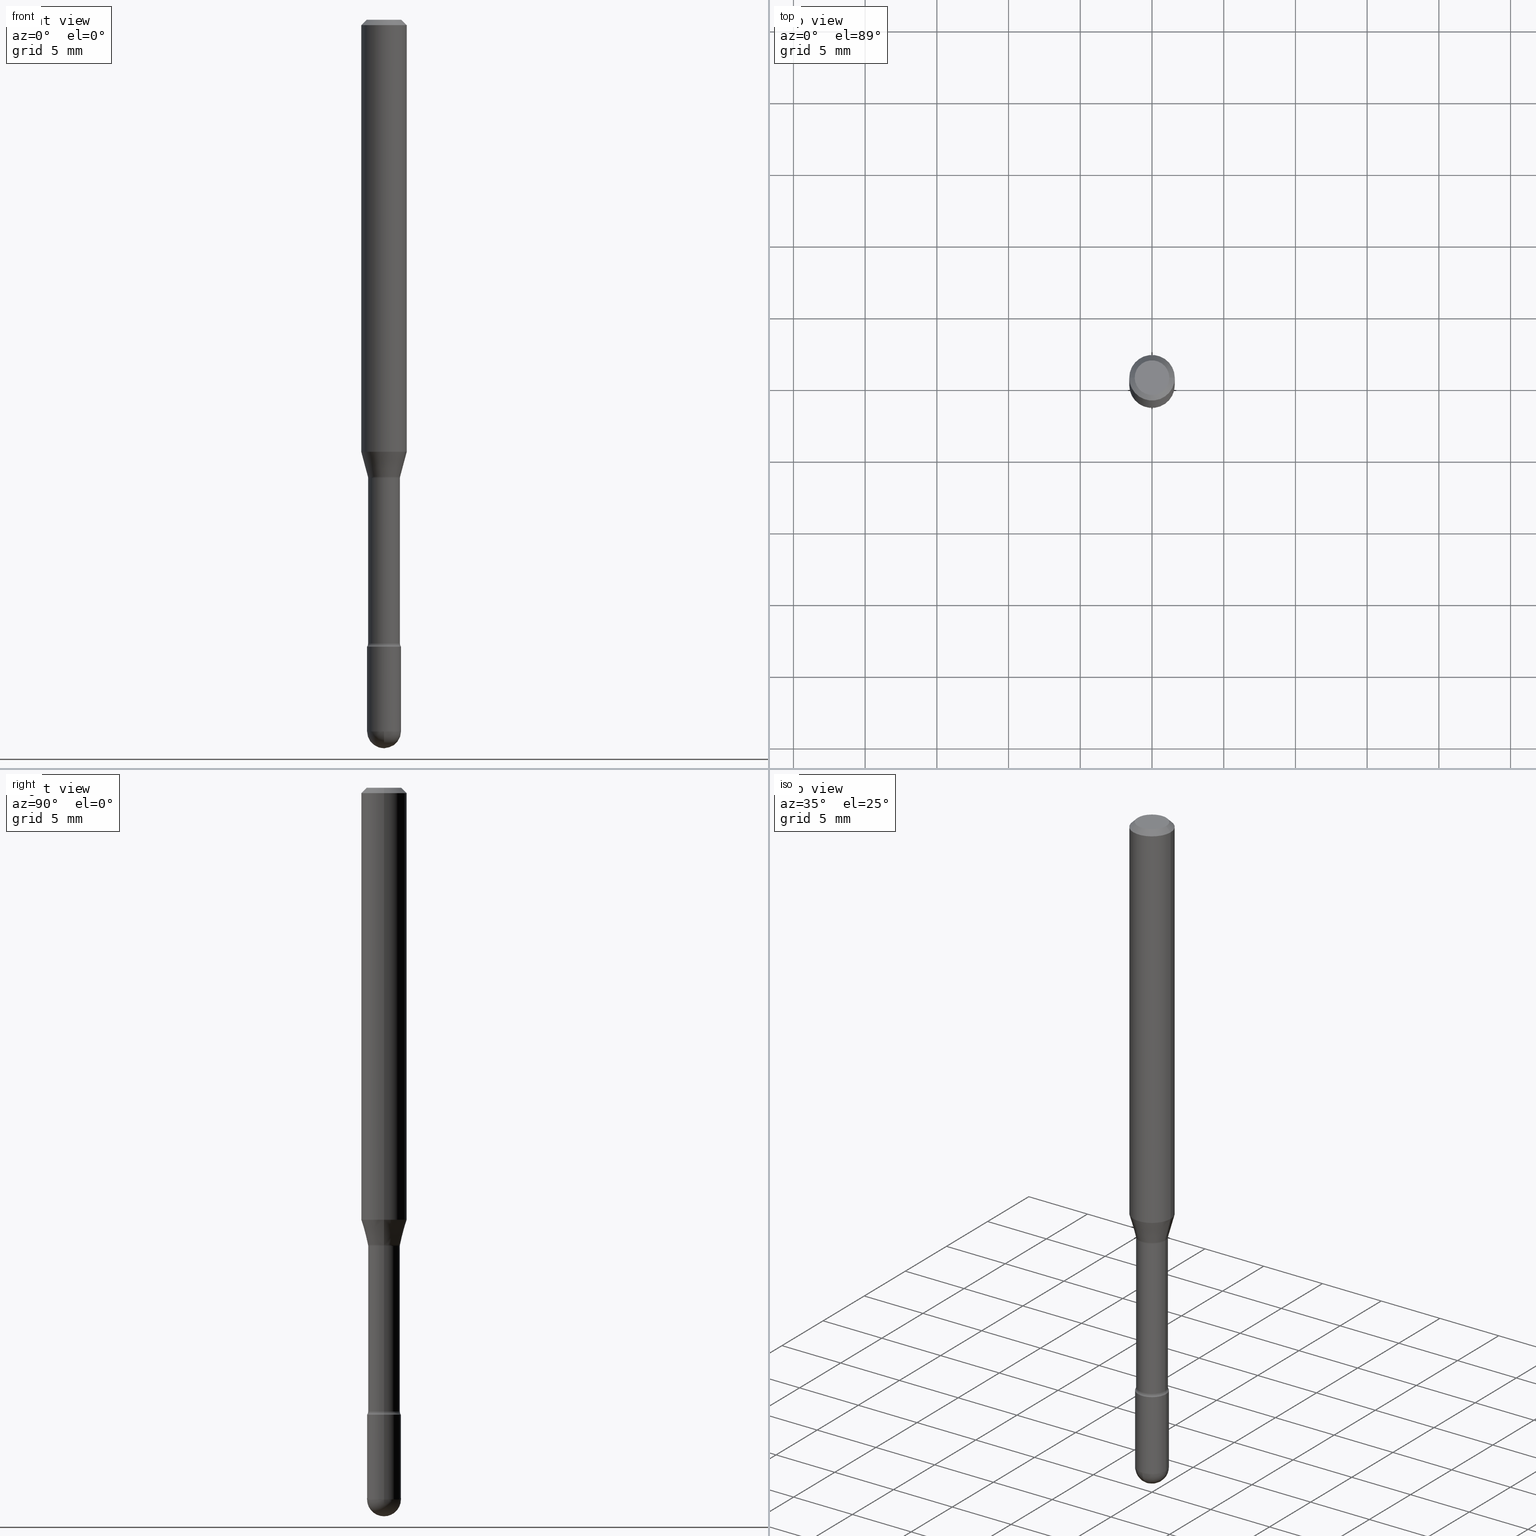
[diagram: canonical four-view strip — front | top / right | iso, engineering-drawing reading convention]
A machine part, canonical four-view strip (front | top / right | iso — engineering-drawing reading convention). The complete STEP part file that produces these views, byte-faithful:
ISO-10303-21;
HEADER;
FILE_DESCRIPTION (( 'STEP AP203' ),
    '1' );
FILE_NAME ('09827.STEP',
    '2024-04-10T01:56:25',
    ( '' ),
    ( '' ),
    'SwSTEP 2.0',
    'SolidWorks 2023',
    '' );
FILE_SCHEMA (( 'CONFIG_CONTROL_DESIGN' ));
ENDSEC;

DATA;
#1 = DESIGN_CONTEXT ( 'detailed design', #406, 'design' ) ;
#2 = EDGE_LOOP ( 'NONE', ( #127, #449, #97, #460 ) ) ;
#3 = CARTESIAN_POINT ( 'NONE',  ( 4.777223312882664517E-29, -6.820608795430085022E-15, -1.953500000000000014 ) ) ;
#4 = ORIENTED_EDGE ( 'NONE', *, *, #207, .T. ) ;
#5 = CIRCLE ( 'NONE', #421, 0.04370000000000000967 ) ;
#6 = EDGE_LOOP ( 'NONE', ( #410, #67 ) ) ;
#7 = CIRCLE ( 'NONE', #205, 0.04649999999999999967 ) ;
#8 = ADVANCED_FACE ( 'NONE', ( #29 ), #203, .F. ) ;
#9 = FACE_OUTER_BOUND ( 'NONE', #173, .T. ) ;
#10 = EDGE_LOOP ( 'NONE', ( #154, #348, #104, #102 ) ) ;
#11 = CARTESIAN_POINT ( 'NONE',  ( 3.316907271900976096E-16, 0.04749999999999999362, 3.181781981480094004E-17 ) ) ;
#12 = DIRECTION ( 'NONE',  ( -2.445468806185136597E-29, 3.491481338843145583E-15, 1.000000000000000000 ) ) ;
#13 = CARTESIAN_POINT ( 'NONE',  ( -0.04421111260566398804, -4.064501718155114829E-15, -1.254092501787273051 ) ) ;
#14 = ORIENTED_EDGE ( 'NONE', *, *, #327, .T. ) ;
#15 = DIRECTION ( 'NONE',  ( 1.000000000000000000, -6.982962677686267499E-15, 4.884662768193073002E-29 ) ) ;
#16 = AXIS2_PLACEMENT_3D ( 'NONE', #450, #491, #142 ) ;
#17 = VECTOR ( 'NONE', #213, 39.37007874015748143 ) ;
#18 = CARTESIAN_POINT ( 'NONE',  ( 4.208651815444620572E-29, -6.008839384149054309E-15, -1.721000000000000085 ) ) ;
#19 = ORIENTED_EDGE ( 'NONE', *, *, #323, .T. ) ;
#20 = CC_DESIGN_DATE_AND_TIME_ASSIGNMENT ( #246, #560, ( #382 ) ) ;
#21 = DIRECTION ( 'NONE',  ( -2.445468806185136597E-29, 3.491481338843145583E-15, 1.000000000000000000 ) ) ;
#22 = DIRECTION ( 'NONE',  ( -2.445468806185136597E-29, 3.491481338843145583E-15, 1.000000000000000000 ) ) ;
#23 = ORIENTED_EDGE ( 'NONE', *, *, #354, .F. ) ;
#24 = CARTESIAN_POINT ( 'NONE',  ( -0.06250000000000000000, -3.696240099632393448E-15, -1.185837444817705144 ) ) ;
#25 = AXIS2_PLACEMENT_3D ( 'NONE', #125, #209, #302 ) ;
#26 = VERTEX_POINT ( 'NONE', #148 ) ;
#27 = CC_DESIGN_PERSON_AND_ORGANIZATION_ASSIGNMENT ( #79, #249, ( #40 ) ) ;
#28 = CARTESIAN_POINT ( 'NONE',  ( 4.777223312882664517E-29, -6.820608795430085022E-15, -1.953500000000000014 ) ) ;
#29 = FACE_OUTER_BOUND ( 'NONE', #283, .T. ) ;
#30 = CARTESIAN_POINT ( 'NONE',  ( -0.04649999999999999967, -6.084321717661122786E-15, -1.721000000000000085 ) ) ;
#31 = DIRECTION ( 'NONE',  ( 6.982962677686265922E-15, 1.000000000000000000, -5.874941921858636379E-15 ) ) ;
#32 = ADVANCED_FACE ( 'NONE', ( #191 ), #286, .T. ) ;
#33 = CALENDAR_DATE ( 2024, 9, 4 ) ;
#34 = EDGE_CURVE ( 'NONE', #548, #375, #106, .T. ) ;
#35 = AXIS2_PLACEMENT_3D ( 'NONE', #3, #427, #206 ) ;
#36 = APPROVAL_PERSON_ORGANIZATION ( #211, #98, #387 ) ;
#37 = CARTESIAN_POINT ( 'NONE',  ( 0.06250000000000000000, -4.888073874380391431E-16, -0.01500000000000008271 ) ) ;
#38 = APPROVAL_DATE_TIME ( #379, #343 ) ;
#39 = VERTEX_POINT ( 'NONE', #70 ) ;
#40 = PRODUCT ( '09827', '09827', '', ( #291 ) ) ;
#41 = LINE ( 'NONE', #115, #17 ) ;
#42 = SECURITY_CLASSIFICATION_LEVEL ( 'unclassified' ) ;
#43 = AXIS2_PLACEMENT_3D ( 'NONE', #316, #140, #311 ) ;
#44 = AXIS2_PLACEMENT_3D ( 'NONE', #11, #315, #358 ) ;
#45 = CARTESIAN_POINT ( 'NONE',  ( 4.777223312882664517E-29, -6.820608795430085022E-15, -1.953500000000000014 ) ) ;
#46 = ORIENTED_EDGE ( 'NONE', *, *, #134, .T. ) ;
#47 = PERSON ( 'UNSPECIFIED', 'UNSPECIFIED', 'UNSPECIFIED', ('UNSPECIFIED'), ('UNSPECIFIED'), ('UNSPECIFIED') ) ;
#48 = CARTESIAN_POINT ( 'NONE',  ( 2.023552857353652888E-45, -2.889097183224559242E-31, -8.274703207154537794E-17 ) ) ;
#49 = EDGE_LOOP ( 'NONE', ( #210, #561, #308, #23 ) ) ;
#50 = FACE_OUTER_BOUND ( 'NONE', #131, .T. ) ;
#51 = ORIENTED_EDGE ( 'NONE', *, *, #555, .T. ) ;
#52 = AXIS2_PLACEMENT_3D ( 'NONE', #187, #518, #483 ) ;
#53 = MANIFOLD_SOLID_BREP ( 'Body-Move/Copy2[1]', #552 ) ;
#54 = DIRECTION ( 'NONE',  ( -1.000000000000000000, 6.982962677686266711E-15, 0.000000000000000000 ) ) ;
#55 = PLANE ( 'NONE',  #372 ) ;
#56 = CARTESIAN_POINT ( 'NONE',  ( 0.05870000000000006463, -6.388269241505986850E-15, -1.712273030308291144 ) ) ;
#57 = CARTESIAN_POINT ( 'NONE',  ( 3.668203209277725232E-31, -5.237222008264747365E-17, -0.01500000000000008271 ) ) ;
#58 = ORIENTED_EDGE ( 'NONE', *, *, #524, .T. ) ;
#59 = CARTESIAN_POINT ( 'NONE',  ( -0.06250000000000000000, 4.440892098500642925E-16, 4.780733988912429571E-16 ) ) ;
#60 = VECTOR ( 'NONE', #260, 39.37007874015748143 ) ;
#61 = DIRECTION ( 'NONE',  ( -2.445468806185136597E-29, 3.491481338843145583E-15, 1.000000000000000000 ) ) ;
#62 = CARTESIAN_POINT ( 'NONE',  ( 3.076338101710126374E-29, -4.392195495165068238E-15, -1.257974787463810973 ) ) ;
#63 = CARTESIAN_POINT ( 'NONE',  ( -0.04370000000000000967, -4.874775238218270843E-15, -1.257974787463810973 ) ) ;
#64 = CARTESIAN_POINT ( 'NONE',  ( 4.892925873992615034E-29, -6.980115373878273276E-15, -2.000000000000000000 ) ) ;
#65 = ORIENTED_EDGE ( 'NONE', *, *, #536, .T. ) ;
#66 = CIRCLE ( 'NONE', #43, 0.01500000000000011394 ) ;
#67 = ORIENTED_EDGE ( 'NONE', *, *, #172, .T. ) ;
#68 = VECTOR ( 'NONE', #355, 39.37007874015747433 ) ;
#69 = DIRECTION ( 'NONE',  ( -2.445468806185136597E-29, 3.491481338843145583E-15, 1.000000000000000000 ) ) ;
#70 = CARTESIAN_POINT ( 'NONE',  ( -0.04650000000000006212, -5.678437012020607034E-15, -1.721000000000000085 ) ) ;
#71 = EDGE_CURVE ( 'NONE', #239, #548, #519, .T. ) ;
#72 = DATE_AND_TIME ( #33, #112 ) ;
#73 = CARTESIAN_POINT ( 'NONE',  ( 3.066844093191453631E-29, -4.378640567173378440E-15, -1.254092501787273051 ) ) ;
#74 = AXIS2_PLACEMENT_3D ( 'NONE', #162, #366, #241 ) ;
#75 = AXIS2_PLACEMENT_3D ( 'NONE', #152, #22, #190 ) ;
#76 = LOCAL_TIME ( 21, 56, 25.00000000000000000, #393 ) ;
#77 = PERSON_AND_ORGANIZATION ( #47, #216 ) ;
#78 = DIRECTION ( 'NONE',  ( -2.445468806185136597E-29, 3.491481338843145583E-15, 1.000000000000000000 ) ) ;
#79 = PERSON_AND_ORGANIZATION ( #47, #216 ) ;
#80 = APPROVAL_DATE_TIME ( #328, #98 ) ;
#81 = CYLINDRICAL_SURFACE ( 'NONE', #215, 0.06250000000000000000 ) ;
#82 = EDGE_LOOP ( 'NONE', ( #236, #220, #566, #422 ) ) ;
#83 = PERSON_AND_ORGANIZATION ( #47, #216 ) ;
#84 = CARTESIAN_POINT ( 'NONE',  ( 0.04370000000000000967, -4.697350964179957317E-15, -1.257974787463810973 ) ) ;
#85 = CIRCLE ( 'NONE', #329, 0.01500000000000011394 ) ;
#86 = DIRECTION ( 'NONE',  ( 1.000000000000000000, -6.982962677686260400E-15, 0.000000000000000000 ) ) ;
#87 = VECTOR ( 'NONE', #310, 39.37007874015747433 ) ;
#88 = ORIENTED_EDGE ( 'NONE', *, *, #377, .T. ) ;
#89 = DIRECTION ( 'NONE',  ( -2.445468806185136877E-29, 3.491481338843145188E-15, 1.000000000000000000 ) ) ;
#90 = DIRECTION ( 'NONE',  ( -1.000000000000000000, 6.982962677686266711E-15, 0.000000000000000000 ) ) ;
#91 = CIRCLE ( 'NONE', #506, 0.04649999999999999967 ) ;
#92 = AXIS2_PLACEMENT_3D ( 'NONE', #284, #462, #320 ) ;
#93 = APPROVAL_ROLE ( '' ) ;
#94 = VERTEX_POINT ( 'NONE', #544 ) ;
#95 = DIRECTION ( 'NONE',  ( -2.445468806185136597E-29, 3.491481338843145583E-15, 1.000000000000000000 ) ) ;
#96 = DIRECTION ( 'NONE',  ( 1.000000000000000000, -6.982962677686260400E-15, 0.000000000000000000 ) ) ;
#97 = ORIENTED_EDGE ( 'NONE', *, *, #134, .F. ) ;
#98 = APPROVAL ( #255, 'UNSPECIFIED' ) ;
#99 = LINE ( 'NONE', #525, #87 ) ;
#100 = ORIENTED_EDGE ( 'NONE', *, *, #314, .T. ) ;
#101 = VECTOR ( 'NONE', #153, 39.37007874015748143 ) ;
#102 = ORIENTED_EDGE ( 'NONE', *, *, #524, .F. ) ;
#103 = DIRECTION ( 'NONE',  ( 1.000000000000000000, -6.982962677686260400E-15, 0.000000000000000000 ) ) ;
#104 = ORIENTED_EDGE ( 'NONE', *, *, #457, .T. ) ;
#105 = FACE_OUTER_BOUND ( 'NONE', #123, .T. ) ;
#106 = LINE ( 'NONE', #278, #101 ) ;
#107 = ORIENTED_EDGE ( 'NONE', *, *, #335, .T. ) ;
#108 = DIRECTION ( 'NONE',  ( -2.445468806185136597E-29, 3.491481338843145583E-15, 1.000000000000000000 ) ) ;
#109 = CIRCLE ( 'NONE', #370, 0.04649999999999999967 ) ;
#110 = CARTESIAN_POINT ( 'NONE',  ( 0.06250000000000000000, -4.811533449433681963E-16, -0.01500000000000008271 ) ) ;
#111 = AXIS2_PLACEMENT_3D ( 'NONE', #133, #443, #222 ) ;
#112 = LOCAL_TIME ( 21, 56, 25.00000000000000000, #339 ) ;
#113 = APPROVAL_DATE_TIME ( #72, #470 ) ;
#114 = CARTESIAN_POINT ( 'NONE',  ( 3.076338101710126374E-29, -4.392195495165068238E-15, -1.257974787463810973 ) ) ;
#115 = CARTESIAN_POINT ( 'NONE',  ( 0.04649999999999999967, -3.247077645124114474E-16, 2.267422200745110326E-30 ) ) ;
#116 = PRODUCT_RELATED_PRODUCT_CATEGORY ( 'detail', '', ( #40 ) ) ;
#117 = ADVANCED_FACE ( 'NONE', ( #280 ), #502, .T. ) ;
#118 = PERSON_AND_ORGANIZATION_ROLE ( 'creator' ) ;
#119 = CARTESIAN_POINT ( 'NONE',  ( -1.169113584055446105E-44, 1.669184350826100908E-30, 4.780733988912460139E-16 ) ) ;
#120 = CIRCLE ( 'NONE', #25, 0.04421111260566398804 ) ;
#121 = PERSON_AND_ORGANIZATION_ROLE ( 'creator' ) ;
#122 = CARTESIAN_POINT ( 'NONE',  ( 4.777223312882664517E-29, -6.820608795430085022E-15, -1.953500000000000014 ) ) ;
#123 = EDGE_LOOP ( 'NONE', ( #297, #484, #19, #309 ) ) ;
#124 = EDGE_LOOP ( 'NONE', ( #503, #146, #132, #441 ) ) ;
#125 = CARTESIAN_POINT ( 'NONE',  ( 3.066844093191453631E-29, -4.378640567173378440E-15, -1.254092501787273051 ) ) ;
#126 = ORIENTED_EDGE ( 'NONE', *, *, #400, .T. ) ;
#127 = ORIENTED_EDGE ( 'NONE', *, *, #248, .F. ) ;
#128 = CIRCLE ( 'NONE', #347, 0.06250000000000000000 ) ;
#129 = DIRECTION ( 'NONE',  ( -2.445468806185136597E-29, 3.491481338843145583E-15, 1.000000000000000000 ) ) ;
#130 = ORIENTED_EDGE ( 'NONE', *, *, #331, .F. ) ;
#131 = EDGE_LOOP ( 'NONE', ( #167, #100, #221, #486 ) ) ;
#132 = ORIENTED_EDGE ( 'NONE', *, *, #335, .F. ) ;
#133 = CARTESIAN_POINT ( 'NONE',  ( 0.05870000000000000218, -4.802095404345251475E-15, -1.257974787463810973 ) ) ;
#134 = EDGE_CURVE ( 'NONE', #261, #499, #214, .T. ) ;
#135 = CARTESIAN_POINT ( 'NONE',  ( 3.066844093191453631E-29, -4.378640567173378440E-15, -1.254092501787273051 ) ) ;
#136 = CYLINDRICAL_SURFACE ( 'NONE', #509, 0.04649999999999999967 ) ;
#137 = CIRCLE ( 'NONE', #204, 0.04649999999999999967 ) ;
#138 = COORDINATED_UNIVERSAL_TIME_OFFSET ( 5, 0, .BEHIND. ) ;
#139 = AXIS2_PLACEMENT_3D ( 'NONE', #418, #196, #299 ) ;
#140 = DIRECTION ( 'NONE',  ( 7.105427357601001859E-15, 1.000000000000000000, -3.491481338843145583E-15 ) ) ;
#141 = EDGE_LOOP ( 'NONE', ( #459, #46, #527, #218, #268 ) ) ;
#142 = DIRECTION ( 'NONE',  ( 1.000000000000000000, -6.982962677686265922E-15, 4.876176775795935793E-29 ) ) ;
#143 = DIRECTION ( 'NONE',  ( 1.000000000000000000, -6.982962677686260400E-15, 0.000000000000000000 ) ) ;
#144 = EDGE_LOOP ( 'NONE', ( #305, #404, #439, #513 ) ) ;
#145 = DIRECTION ( 'NONE',  ( -1.000000000000000000, 6.982962677686265922E-15, -4.883557194083111780E-29 ) ) ;
#146 = ORIENTED_EDGE ( 'NONE', *, *, #34, .T. ) ;
#147 = ADVANCED_FACE ( 'NONE', ( #385 ), #163, .T. ) ;
#148 = CARTESIAN_POINT ( 'NONE',  ( 0.04749999999999999362, -4.035134999187581581E-16, -8.274703207154280181E-17 ) ) ;
#149 = AXIS2_PLACEMENT_3D ( 'NONE', #276, #500, #103 ) ;
#150 = CONICAL_SURFACE ( 'NONE', #373, 0.06250000000000000000, 0.7853981633974483900 ) ;
#151 = ORIENTED_EDGE ( 'NONE', *, *, #477, .T. ) ;
#152 = CARTESIAN_POINT ( 'NONE',  ( 3.076338101710126374E-29, -4.392195495165068238E-15, -1.257974787463810973 ) ) ;
#153 = DIRECTION ( 'NONE',  ( -2.445468806185136877E-29, 3.491481338843145188E-15, 1.000000000000000000 ) ) ;
#154 = ORIENTED_EDGE ( 'NONE', *, *, #555, .F. ) ;
#155 = DIRECTION ( 'NONE',  ( 1.000000000000000000, -6.982962677686262766E-15, 0.000000000000000000 ) ) ;
#156 = EDGE_CURVE ( 'NONE', #261, #419, #340, .T. ) ;
#157 = CALENDAR_DATE ( 2024, 9, 4 ) ;
#158 = VERTEX_POINT ( 'NONE', #84 ) ;
#159 = AXIS2_PLACEMENT_3D ( 'NONE', #526, #129, #351 ) ;
#160 = CC_DESIGN_APPROVAL ( #470, ( #565 ) ) ;
#161 = ORIENTED_EDGE ( 'NONE', *, *, #156, .T. ) ;
#162 = CARTESIAN_POINT ( 'NONE',  ( 4.187310283291023133E-29, -5.978369332325802035E-15, -1.712273030308291144 ) ) ;
#163 = CYLINDRICAL_SURFACE ( 'NONE', #285, 0.04369999999999998191 ) ;
#164 = APPLICATION_PROTOCOL_DEFINITION ( 'international standard', 'config_control_design', 1994, #406 ) ;
#165 = APPROVAL_STATUS ( 'not_yet_approved' ) ;
#166 = DIRECTION ( 'NONE',  ( 1.000000000000000000, -6.982962677686266711E-15, 4.858289198259664893E-29 ) ) ;
#167 = ORIENTED_EDGE ( 'NONE', *, *, #331, .T. ) ;
#168 = CALENDAR_DATE ( 2024, 9, 4 ) ;
#169 = DIRECTION ( 'NONE',  ( 6.982962677686265133E-15, 1.000000000000000000, 0.000000000000000000 ) ) ;
#170 = ORIENTED_EDGE ( 'NONE', *, *, #174, .F. ) ;
#171 = PRODUCT_DEFINITION_SHAPE ( 'NONE', 'NONE',  #382 ) ;
#172 = EDGE_CURVE ( 'NONE', #419, #520, #109, .T. ) ;
#173 = EDGE_LOOP ( 'NONE', ( #14, #51 ) ) ;
#174 = EDGE_CURVE ( 'NONE', #452, #244, #120, .T. ) ;
#175 = TOROIDAL_SURFACE ( 'NONE', #92, 0.05870000000000006463, 0.01500000000000010873 ) ;
#176 = CC_DESIGN_APPROVAL ( #98, ( #479 ) ) ;
#177 = ORIENTED_EDGE ( 'NONE', *, *, #446, .T. ) ;
#178 = EDGE_LOOP ( 'NONE', ( #394, #177, #193, #238 ) ) ;
#179 = FACE_OUTER_BOUND ( 'NONE', #10, .T. ) ;
#180 = EDGE_CURVE ( 'NONE', #499, #374, #91, .T. ) ;
#181 = CARTESIAN_POINT ( 'NONE',  ( -0.06250000000000000000, 3.840629472727441958E-16, -0.01500000000000008271 ) ) ;
#182 = DIRECTION ( 'NONE',  ( 1.000000000000000000, -6.982962677686266711E-15, 0.000000000000000000 ) ) ;
#183 = AXIS2_PLACEMENT_3D ( 'NONE', #48, #403, #15 ) ;
#184 = CIRCLE ( 'NONE', #401, 0.04649999999999999967 ) ;
#185 = DIRECTION ( 'NONE',  ( -2.445468806185136597E-29, 3.491481338843145583E-15, 1.000000000000000000 ) ) ;
#186 = ORIENTED_EDGE ( 'NONE', *, *, #207, .F. ) ;
#187 = CARTESIAN_POINT ( 'NONE',  ( 0.000000000000000000, 0.000000000000000000, 0.000000000000000000 ) ) ;
#188 = ADVANCED_FACE ( 'NONE', ( #247 ), #381, .T. ) ;
#189 = DIRECTION ( 'NONE',  ( 1.000000000000000000, -6.982962677686265922E-15, 4.876176775795935793E-29 ) ) ;
#190 = DIRECTION ( 'NONE',  ( 1.000000000000000000, -6.982962677686263555E-15, 4.883557194083111780E-29 ) ) ;
#191 = FACE_OUTER_BOUND ( 'NONE', #2, .T. ) ;
#192 =( NAMED_UNIT ( * ) PLANE_ANGLE_UNIT ( ) SI_UNIT ( $, .RADIAN. ) );
#193 = ORIENTED_EDGE ( 'NONE', *, *, #437, .T. ) ;
#194 = CARTESIAN_POINT ( 'NONE',  ( 3.247077645124589763E-16, 0.04649999999999315792, -1.953500000000000458 ) ) ;
#195 = CIRCLE ( 'NONE', #35, 0.04649999999999995109 ) ;
#196 = DIRECTION ( 'NONE',  ( -2.445468806185136597E-29, 3.491481338843145583E-15, 1.000000000000000000 ) ) ;
#197 = DIRECTION ( 'NONE',  ( -2.445468806185136597E-29, 3.491481338843145583E-15, 1.000000000000000000 ) ) ;
#198 = DIRECTION ( 'NONE',  ( 1.000000000000000000, -6.982962677686263555E-15, 4.883557194083111780E-29 ) ) ;
#199 = CARTESIAN_POINT ( 'NONE',  ( 0.06250000000000000000, -4.364351673553899931E-16, 4.780733988912490708E-16 ) ) ;
#200 = CC_DESIGN_DATE_AND_TIME_ASSIGNMENT ( #292, #253, ( #479 ) ) ;
#201 = CALENDAR_DATE ( 2024, 9, 4 ) ;
#202 = CARTESIAN_POINT ( 'NONE',  ( -0.04369999999999994722, -5.673149584409622388E-15, -1.712273030308291144 ) ) ;
#203 = TOROIDAL_SURFACE ( 'NONE', #275, 0.05870000000000000218, 0.01500000000000002373 ) ;
#204 = AXIS2_PLACEMENT_3D ( 'NONE', #304, #226, #96 ) ;
#205 = AXIS2_PLACEMENT_3D ( 'NONE', #529, #61, #143 ) ;
#206 = DIRECTION ( 'NONE',  ( -7.105427357601001070E-15, -1.000000000000000000, 0.000000000000000000 ) ) ;
#207 = EDGE_CURVE ( 'NONE', #244, #452, #277, .T. ) ;
#208 = EDGE_CURVE ( 'NONE', #361, #499, #195, .T. ) ;
#209 = DIRECTION ( 'NONE',  ( -2.445468806185136597E-29, 3.491481338843145583E-15, 1.000000000000000000 ) ) ;
#210 = ORIENTED_EDGE ( 'NONE', *, *, #536, .F. ) ;
#211 = PERSON_AND_ORGANIZATION ( #47, #216 ) ;
#212 = ORIENTED_EDGE ( 'NONE', *, *, #505, .T. ) ;
#213 = DIRECTION ( 'NONE',  ( -2.445468806185136877E-29, 3.491481338843145188E-15, 1.000000000000000000 ) ) ;
#214 = CIRCLE ( 'NONE', #508, 0.04649999999999999967 ) ;
#215 = AXIS2_PLACEMENT_3D ( 'NONE', #119, #293, #469 ) ;
#216 = ORGANIZATION ( 'UNSPECIFIED', 'UNSPECIFIED', '' ) ;
#217 = PERSON_AND_ORGANIZATION_ROLE ( 'design_supplier' ) ;
#218 = ORIENTED_EDGE ( 'NONE', *, *, #557, .T. ) ;
#219 = DIRECTION ( 'NONE',  ( -2.445468806185136597E-29, 3.491481338843145583E-15, 1.000000000000000000 ) ) ;
#220 = ORIENTED_EDGE ( 'NONE', *, *, #354, .T. ) ;
#221 = ORIENTED_EDGE ( 'NONE', *, *, #457, .F. ) ;
#222 = DIRECTION ( 'NONE',  ( 1.000000000000000000, -6.982962677686259611E-15, 0.000000000000000000 ) ) ;
#223 = CONICAL_SURFACE ( 'NONE', #545, 0.06250000000000000000, 0.7853981633974483900 ) ;
#224 = ORIENTED_EDGE ( 'NONE', *, *, #541, .F. ) ;
#225 = DIRECTION ( 'NONE',  ( 1.000000000000000000, -6.982962677686260400E-15, 0.000000000000000000 ) ) ;
#226 = DIRECTION ( 'NONE',  ( -2.445468806185136597E-29, 3.491481338843145583E-15, 1.000000000000000000 ) ) ;
#227 = CARTESIAN_POINT ( 'NONE',  ( -3.304023721283985622E-16, -0.04650000000000679978, -1.953499999999999792 ) ) ;
#228 = DIRECTION ( 'NONE',  ( 1.000000000000000000, -6.982962677686280121E-15, 0.000000000000000000 ) ) ;
#229 = DIRECTION ( 'NONE',  ( -2.438088387897960049E-29, 3.491481338843145188E-15, 1.000000000000000000 ) ) ;
#230 = EDGE_LOOP ( 'NONE', ( #495, #364 ) ) ;
#231 = CARTESIAN_POINT ( 'NONE',  ( 0.04650000000000006212, -6.333547148661465805E-15, -1.721000000000000085 ) ) ;
#232 = AXIS2_PLACEMENT_3D ( 'NONE', #378, #514, #290 ) ;
#233 = CIRCLE ( 'NONE', #478, 0.04370000000000000967 ) ;
#234 = ADVANCED_FACE ( 'NONE', ( #507 ), #81, .T. ) ;
#235 = LOCAL_TIME ( 21, 56, 25.00000000000000000, #138 ) ;
#236 = ORIENTED_EDGE ( 'NONE', *, *, #314, .F. ) ;
#237 = DIRECTION ( 'NONE',  ( 1.000000000000000000, -6.982962677686260400E-15, 0.000000000000000000 ) ) ;
#238 = ORIENTED_EDGE ( 'NONE', *, *, #323, .F. ) ;
#239 = VERTEX_POINT ( 'NONE', #254 ) ;
#240 = DIRECTION ( 'NONE',  ( -2.445468806185136877E-29, 3.491481338843145188E-15, 1.000000000000000000 ) ) ;
#241 = DIRECTION ( 'NONE',  ( 1.000000000000000000, -6.982962677686272233E-15, 0.000000000000000000 ) ) ;
#242 = AXIS2_PLACEMENT_3D ( 'NONE', #57, #21, #490 ) ;
#243 =( CONVERSION_BASED_UNIT ( 'INCH', #551 ) LENGTH_UNIT ( ) NAMED_UNIT ( #528 ) );
#244 = VERTEX_POINT ( 'NONE', #251 ) ;
#245 = DIRECTION ( 'NONE',  ( 1.000000000000000000, -6.982962677686261977E-15, 0.000000000000000000 ) ) ;
#246 = DATE_AND_TIME ( #168, #534 ) ;
#247 = FACE_OUTER_BOUND ( 'NONE', #49, .T. ) ;
#248 = EDGE_CURVE ( 'NONE', #361, #433, #533, .T. ) ;
#249 = PERSON_AND_ORGANIZATION_ROLE ( 'design_owner' ) ;
#250 = VECTOR ( 'NONE', #89, 39.37007874015748143 ) ;
#251 = CARTESIAN_POINT ( 'NONE',  ( 0.04421111260566398804, -4.687365116437714355E-15, -1.254092501787273051 ) ) ;
#252 = PERSON_AND_ORGANIZATION ( #47, #216 ) ;
#253 = DATE_TIME_ROLE ( 'classification_date' ) ;
#254 = CARTESIAN_POINT ( 'NONE',  ( 0.04369999999999994722, -6.283524801340691903E-15, -1.712273030308291144 ) ) ;
#255 = APPROVAL_STATUS ( 'not_yet_approved' ) ;
#256 = DIRECTION ( 'NONE',  ( -2.445468806185136597E-29, 3.491481338843145583E-15, 1.000000000000000000 ) ) ;
#257 = AXIS2_PLACEMENT_3D ( 'NONE', #73, #396, #474 ) ;
#258 = CARTESIAN_POINT ( 'NONE',  ( 3.066844093191453631E-29, -4.378640567173378440E-15, -1.254092501787273051 ) ) ;
#259 = VERTEX_POINT ( 'NONE', #37 ) ;
#260 = DIRECTION ( 'NONE',  ( -2.445468806185136877E-29, 3.491481338843145188E-15, 1.000000000000000000 ) ) ;
#261 = VERTEX_POINT ( 'NONE', #342 ) ;
#262 = DIRECTION ( 'NONE',  ( 1.000000000000000000, -6.982962677686266711E-15, 4.852736867747366207E-29 ) ) ;
#263 = EDGE_CURVE ( 'NONE', #319, #39, #137, .T. ) ;
#264 = ORIENTED_EDGE ( 'NONE', *, *, #332, .T. ) ;
#265 = CC_DESIGN_PERSON_AND_ORGANIZATION_ASSIGNMENT ( #83, #296, ( #479 ) ) ;
#266 = CARTESIAN_POINT ( 'NONE',  ( 0.04649999999999999967, -6.333547148661465016E-15, -1.721000000000000085 ) ) ;
#267 = CONICAL_SURFACE ( 'NONE', #312, 0.04421111260566398804, 0.2617993877991500740 ) ;
#268 = ORIENTED_EDGE ( 'NONE', *, *, #172, .F. ) ;
#269 = CARTESIAN_POINT ( 'NONE',  ( 4.187310283291023133E-29, -5.978369332325802035E-15, -1.712273030308291144 ) ) ;
#270 = CARTESIAN_POINT ( 'NONE',  ( 0.04369999999999998191, -3.051554690148880436E-16, 4.780733988912481833E-16 ) ) ;
#271 = APPLICATION_CONTEXT ( 'configuration controlled 3d designs of mechanical parts and assemblies' ) ;
#272 = EDGE_CURVE ( 'NONE', #239, #158, #440, .T. ) ;
#273 = ADVANCED_FACE ( 'NONE', ( #313 ), #413, .T. ) ;
#274 = PLANE ( 'NONE',  #44 ) ;
#275 = AXIS2_PLACEMENT_3D ( 'NONE', #114, #425, #198 ) ;
#276 = CARTESIAN_POINT ( 'NONE',  ( 4.208651815444620572E-29, -6.008839384149054309E-15, -1.721000000000000085 ) ) ;
#277 = CIRCLE ( 'NONE', #257, 0.04421111260566398804 ) ;
#278 = CARTESIAN_POINT ( 'NONE',  ( -0.04369999999999998191, 3.105071755271653784E-16, 4.780733988912439432E-16 ) ) ;
#279 = DIRECTION ( 'NONE',  ( 1.000000000000000000, -6.982962677686261977E-15, 0.000000000000000000 ) ) ;
#280 = FACE_OUTER_BOUND ( 'NONE', #124, .T. ) ;
#281 = ORIENTED_EDGE ( 'NONE', *, *, #208, .F. ) ;
#282 = CARTESIAN_POINT ( 'NONE',  ( -0.05870000000000000218, -3.975106909273889611E-15, -1.257974787463810973 ) ) ;
#283 = EDGE_LOOP ( 'NONE', ( #475, #186, #151, #107 ) ) ;
#284 = CARTESIAN_POINT ( 'NONE',  ( 4.187310283291023133E-29, -5.978369332325802035E-15, -1.712273030308291144 ) ) ;
#285 = AXIS2_PLACEMENT_3D ( 'NONE', #388, #346, #166 ) ;
#286 = SPHERICAL_SURFACE ( 'NONE', #461, 0.04649999999999995109 ) ;
#287 = TOROIDAL_SURFACE ( 'NONE', #75, 0.05870000000000000218, 0.01500000000000002373 ) ;
#288 = CIRCLE ( 'NONE', #434, 0.04369999999999994722 ) ;
#289 = ADVANCED_FACE ( 'NONE', ( #307 ), #480, .T. ) ;
#290 = DIRECTION ( 'NONE',  ( 1.000000000000000000, -6.982962677686266711E-15, 4.858289198259664893E-29 ) ) ;
#291 = MECHANICAL_CONTEXT ( 'NONE', #271, 'mechanical' ) ;
#292 = DATE_AND_TIME ( #157, #76 ) ;
#293 = DIRECTION ( 'NONE',  ( -2.445468806185136597E-29, 3.491481338843145583E-15, 1.000000000000000000 ) ) ;
#294 = VECTOR ( 'NONE', #564, 39.37007874015748143 ) ;
#295 = TOROIDAL_SURFACE ( 'NONE', #321, 0.05870000000000006463, 0.01500000000000010873 ) ;
#296 = PERSON_AND_ORGANIZATION_ROLE ( 'classification_officer' ) ;
#297 = ORIENTED_EDGE ( 'NONE', *, *, #446, .F. ) ;
#298 =( NAMED_UNIT ( * ) SI_UNIT ( $, .STERADIAN. ) SOLID_ANGLE_UNIT ( ) );
#299 = DIRECTION ( 'NONE',  ( 1.000000000000000000, -6.982962677686267499E-15, 4.884662768193073002E-29 ) ) ;
#300 = DIRECTION ( 'NONE',  ( 1.000000000000000000, -6.982962677686260400E-15, 0.000000000000000000 ) ) ;
#301 = CC_DESIGN_PERSON_AND_ORGANIZATION_ASSIGNMENT ( #431, #118, ( #382 ) ) ;
#302 = DIRECTION ( 'NONE',  ( 1.000000000000000000, -6.982962677686263555E-15, 0.000000000000000000 ) ) ;
#303 = AXIS2_PLACEMENT_3D ( 'NONE', #282, #456, #420 ) ;
#304 = CARTESIAN_POINT ( 'NONE',  ( 4.208651815444620572E-29, -6.008839384149054309E-15, -1.721000000000000085 ) ) ;
#305 = ORIENTED_EDGE ( 'NONE', *, *, #34, .F. ) ;
#306 = DIRECTION ( 'NONE',  ( -2.445468806185136597E-29, 3.491481338843145583E-15, 1.000000000000000000 ) ) ;
#307 = FACE_OUTER_BOUND ( 'NONE', #6, .T. ) ;
#308 = ORIENTED_EDGE ( 'NONE', *, *, #511, .T. ) ;
#309 = ORIENTED_EDGE ( 'NONE', *, *, #263, .T. ) ;
#310 = DIRECTION ( 'NONE',  ( 0.2588190451025213501, 1.565188264969621968E-15, 0.9659258262890682012 ) ) ;
#311 = DIRECTION ( 'NONE',  ( -1.000000000000000000, 7.105427357601001859E-15, 0.000000000000000000 ) ) ;
#312 = AXIS2_PLACEMENT_3D ( 'NONE', #135, #306, #445 ) ;
#313 = FACE_OUTER_BOUND ( 'NONE', #349, .T. ) ;
#314 = EDGE_CURVE ( 'NONE', #398, #94, #448, .T. ) ;
#315 = DIRECTION ( 'NONE',  ( 2.438088387897960049E-29, -3.491481338843145188E-15, -1.000000000000000000 ) ) ;
#316 = CARTESIAN_POINT ( 'NONE',  ( -0.05870000000000006463, -5.561280746434622619E-15, -1.712273030308291144 ) ) ;
#317 = ORIENTED_EDGE ( 'NONE', *, *, #557, .F. ) ;
#318 = FACE_OUTER_BOUND ( 'NONE', #178, .T. ) ;
#319 = VERTEX_POINT ( 'NONE', #231 ) ;
#320 = DIRECTION ( 'NONE',  ( 1.000000000000000000, -6.982962677686261977E-15, 4.883557194083111219E-29 ) ) ;
#321 = AXIS2_PLACEMENT_3D ( 'NONE', #550, #360, #538 ) ;
#322 = APPROVAL_PERSON_ORGANIZATION ( #252, #343, #93 ) ;
#323 = EDGE_CURVE ( 'NONE', #239, #319, #85, .T. ) ;
#324 = CARTESIAN_POINT ( 'NONE',  ( 4.777223312882664517E-29, -6.820608795430085022E-15, -1.953500000000000014 ) ) ;
#325 = ORIENTED_EDGE ( 'NONE', *, *, #327, .F. ) ;
#326 = CARTESIAN_POINT ( 'NONE',  ( -0.04749999999999999362, 3.578768372314208041E-16, -8.274703207154778150E-17 ) ) ;
#327 = EDGE_CURVE ( 'NONE', #389, #26, #521, .T. ) ;
#328 = DATE_AND_TIME ( #558, #472 ) ;
#329 = AXIS2_PLACEMENT_3D ( 'NONE', #56, #397, #228 ) ;
#330 = VECTOR ( 'NONE', #424, 39.37007874015748143 ) ;
#331 = EDGE_CURVE ( 'NONE', #368, #398, #411, .T. ) ;
#332 = EDGE_CURVE ( 'NONE', #94, #259, #128, .T. ) ;
#333 = ADVANCED_FACE ( 'NONE', ( #530 ), #136, .T. ) ;
#334 = PERSON_AND_ORGANIZATION ( #47, #216 ) ;
#335 = EDGE_CURVE ( 'NONE', #158, #375, #233, .T. ) ;
#336 = APPROVAL_ROLE ( '' ) ;
#337 = APPROVAL_STATUS ( 'not_yet_approved' ) ;
#338 = ADVANCED_FACE ( 'NONE', ( #455 ), #546, .T. ) ;
#339 = COORDINATED_UNIVERSAL_TIME_OFFSET ( 5, 0, .BEHIND. ) ;
#340 = LINE ( 'NONE', #559, #294 ) ;
#341 = AXIS2_PLACEMENT_3D ( 'NONE', #543, #108, #155 ) ;
#342 = CARTESIAN_POINT ( 'NONE',  ( -0.04649999999999999967, -6.084321717661123574E-15, -1.953500000000000014 ) ) ;
#343 = APPROVAL ( #337, 'UNSPECIFIED' ) ;
#344 = ORIENTED_EDGE ( 'NONE', *, *, #482, .F. ) ;
#345 = EDGE_CURVE ( 'NONE', #368, #259, #365, .T. ) ;
#346 = DIRECTION ( 'NONE',  ( -2.445468806185136597E-29, 3.491481338843145583E-15, 1.000000000000000000 ) ) ;
#347 = AXIS2_PLACEMENT_3D ( 'NONE', #407, #12, #182 ) ;
#348 = ORIENTED_EDGE ( 'NONE', *, *, #541, .T. ) ;
#349 = EDGE_LOOP ( 'NONE', ( #212, #161, #344, #317, #88 ) ) ;
#350 = DIRECTION ( 'NONE',  ( 1.000000000000000000, -6.982962677686272233E-15, 0.000000000000000000 ) ) ;
#351 = DIRECTION ( 'NONE',  ( 1.000000000000000000, -6.982962677686262766E-15, 0.000000000000000000 ) ) ;
#352 = EDGE_LOOP ( 'NONE', ( #281, #523, #359, #542 ) ) ;
#353 = DIRECTION ( 'NONE',  ( 2.445468806185136597E-29, -3.491481338843145583E-15, -1.000000000000000000 ) ) ;
#354 = EDGE_CURVE ( 'NONE', #398, #368, #356, .T. ) ;
#355 = DIRECTION ( 'NONE',  ( -0.2588190451025213501, 5.211531920934551042E-15, 0.9659258262890682012 ) ) ;
#356 = CIRCLE ( 'NONE', #341, 0.06250000000000000000 ) ;
#357 = APPROVAL_PERSON_ORGANIZATION ( #334, #470, #336 ) ;
#358 = DIRECTION ( 'NONE',  ( -1.000000000000000000, 6.982962677686265922E-15, -4.876176775795935793E-29 ) ) ;
#359 = ORIENTED_EDGE ( 'NONE', *, *, #377, .F. ) ;
#360 = DIRECTION ( 'NONE',  ( -2.445468806185136597E-29, 3.491481338843145583E-15, 1.000000000000000000 ) ) ;
#361 = VERTEX_POINT ( 'NONE', #64 ) ;
#362 = ADVANCED_BREP_SHAPE_REPRESENTATION ( '09827', ( #53, #436, #392 ), #489 ) ;
#363 = FACE_OUTER_BOUND ( 'NONE', #230, .T. ) ;
#364 = ORIENTED_EDGE ( 'NONE', *, *, #437, .F. ) ;
#365 = LINE ( 'NONE', #199, #454 ) ;
#366 = DIRECTION ( 'NONE',  ( -2.445468806185136597E-29, 3.491481338843145583E-15, 1.000000000000000000 ) ) ;
#367 = EDGE_CURVE ( 'NONE', #452, #375, #463, .T. ) ;
#368 = VERTEX_POINT ( 'NONE', #504 ) ;
#369 = CC_DESIGN_PERSON_AND_ORGANIZATION_ASSIGNMENT ( #466, #217, ( #565 ) ) ;
#370 = AXIS2_PLACEMENT_3D ( 'NONE', #512, #510, #300 ) ;
#371 = FACE_OUTER_BOUND ( 'NONE', #515, .T. ) ;
#372 = AXIS2_PLACEMENT_3D ( 'NONE', #537, #229, #189 ) ;
#373 = AXIS2_PLACEMENT_3D ( 'NONE', #485, #353, #90 ) ;
#374 = VERTEX_POINT ( 'NONE', #501 ) ;
#375 = VERTEX_POINT ( 'NONE', #63 ) ;
#376 = DIRECTION ( 'NONE',  ( -2.445468806185136597E-29, 3.491481338843145583E-15, 1.000000000000000000 ) ) ;
#377 = EDGE_CURVE ( 'NONE', #374, #433, #498, .T. ) ;
#378 = CARTESIAN_POINT ( 'NONE',  ( -1.169113584055446105E-44, 1.669184350826100908E-30, 4.780733988912460139E-16 ) ) ;
#379 = DATE_AND_TIME ( #201, #235 ) ;
#380 = COORDINATED_UNIVERSAL_TIME_OFFSET ( 5, 0, .BEHIND. ) ;
#381 = CONICAL_SURFACE ( 'NONE', #390, 0.04421111260566398804, 0.2617993877991500740 ) ;
#382 = PRODUCT_DEFINITION ( 'UNKNOWN', '', #565, #1 ) ;
#383 = CARTESIAN_POINT ( 'NONE',  ( 0.000000000000000000, 0.000000000000000000, 0.000000000000000000 ) ) ;
#384 = DIRECTION ( 'NONE',  ( 1.000000000000000000, -6.982962677686263555E-15, 0.000000000000000000 ) ) ;
#385 = FACE_OUTER_BOUND ( 'NONE', #144, .T. ) ;
#386 = ADVANCED_FACE ( 'NONE', ( #105 ), #175, .F. ) ;
#387 = APPROVAL_ROLE ( '' ) ;
#388 = CARTESIAN_POINT ( 'NONE',  ( -1.169113584055446105E-44, 1.669184350826100908E-30, 4.780733988912460139E-16 ) ) ;
#389 = VERTEX_POINT ( 'NONE', #326 ) ;
#390 = AXIS2_PLACEMENT_3D ( 'NONE', #258, #219, #384 ) ;
#391 = EDGE_LOOP ( 'NONE', ( #170, #416, #126, #476 ) ) ;
#392 = AXIS2_PLACEMENT_3D ( 'NONE', #383, #516, #556 ) ;
#393 = COORDINATED_UNIVERSAL_TIME_OFFSET ( 5, 0, .BEHIND. ) ;
#394 = ORIENTED_EDGE ( 'NONE', *, *, #493, .F. ) ;
#395 =( LENGTH_UNIT ( ) NAMED_UNIT ( * ) SI_UNIT ( $, .METRE. ) );
#396 = DIRECTION ( 'NONE',  ( -2.445468806185136597E-29, 3.491481338843145583E-15, 1.000000000000000000 ) ) ;
#397 = DIRECTION ( 'NONE',  ( -6.982962677686266711E-15, -1.000000000000000000, 3.491481338843145583E-15 ) ) ;
#398 = VERTEX_POINT ( 'NONE', #24 ) ;
#399 = CIRCLE ( 'NONE', #149, 0.04649999999999999967 ) ;
#400 = EDGE_CURVE ( 'NONE', #375, #158, #5, .T. ) ;
#401 = AXIS2_PLACEMENT_3D ( 'NONE', #18, #185, #225 ) ;
#402 = DIRECTION ( 'NONE',  ( -2.445468806185136597E-29, 3.491481338843145583E-15, 1.000000000000000000 ) ) ;
#403 = DIRECTION ( 'NONE',  ( -2.445468806185136597E-29, 3.491481338843145583E-15, 1.000000000000000000 ) ) ;
#404 = ORIENTED_EDGE ( 'NONE', *, *, #493, .T. ) ;
#405 = LINE ( 'NONE', #181, #522 ) ;
#406 = APPLICATION_CONTEXT ( 'configuration controlled 3d designs of mechanical parts and assemblies' ) ;
#407 = CARTESIAN_POINT ( 'NONE',  ( 3.668203209277725232E-31, -5.237222008264747365E-17, -0.01500000000000008271 ) ) ;
#408 = LINE ( 'NONE', #13, #68 ) ;
#409 = CYLINDRICAL_SURFACE ( 'NONE', #488, 0.06250000000000000000 ) ;
#410 = ORIENTED_EDGE ( 'NONE', *, *, #482, .T. ) ;
#411 = CIRCLE ( 'NONE', #159, 0.06250000000000000000 ) ;
#412 = CIRCLE ( 'NONE', #139, 0.04749999999999999362 ) ;
#413 = CYLINDRICAL_SURFACE ( 'NONE', #52, 0.04649999999999999967 ) ;
#414 = DIRECTION ( 'NONE',  ( -2.445468806185136597E-29, 3.491481338843145583E-15, 1.000000000000000000 ) ) ;
#415 = UNCERTAINTY_MEASURE_WITH_UNIT (LENGTH_MEASURE( 1.000000000000000082E-05 ), #243, 'distance_accuracy_value', 'NONE');
#416 = ORIENTED_EDGE ( 'NONE', *, *, #367, .T. ) ;
#417 = DIRECTION ( 'NONE',  ( 1.000000000000000000, -6.982962677686267499E-15, 4.876176775795936353E-29 ) ) ;
#418 = CARTESIAN_POINT ( 'NONE',  ( 2.023552857353652888E-45, -2.889097183224559242E-31, -8.274703207154537794E-17 ) ) ;
#419 = VERTEX_POINT ( 'NONE', #30 ) ;
#420 = DIRECTION ( 'NONE',  ( -1.000000000000000000, 7.105427357601014480E-15, 0.000000000000000000 ) ) ;
#421 = AXIS2_PLACEMENT_3D ( 'NONE', #423, #69, #245 ) ;
#422 = ORIENTED_EDGE ( 'NONE', *, *, #332, .F. ) ;
#423 = CARTESIAN_POINT ( 'NONE',  ( 3.076338101710126374E-29, -4.392195495165068238E-15, -1.257974787463810973 ) ) ;
#424 = DIRECTION ( 'NONE',  ( 0.7071067811865475727, -7.319954787623256045E-15, -0.7071067811865474617 ) ) ;
#425 = DIRECTION ( 'NONE',  ( -2.445468806185136597E-29, 3.491481338843145583E-15, 1.000000000000000000 ) ) ;
#426 = AXIS2_PLACEMENT_3D ( 'NONE', #28, #197, #237 ) ;
#427 = DIRECTION ( 'NONE',  ( -1.000000000000000000, 7.105427357601001070E-15, -4.926315508542082329E-29 ) ) ;
#428 = COORDINATED_UNIVERSAL_TIME_OFFSET ( 5, 0, .BEHIND. ) ;
#429 = DIRECTION ( 'NONE',  ( 1.000000000000000000, -6.982962677686265922E-15, 4.883557194083112340E-29 ) ) ;
#430 = ADVANCED_FACE ( 'NONE', ( #318 ), #295, .F. ) ;
#431 = PERSON_AND_ORGANIZATION ( #47, #216 ) ;
#432 = CARTESIAN_POINT ( 'NONE',  ( 4.777223312882664517E-29, -6.820608795430085022E-15, -1.953500000000000014 ) ) ;
#433 = VERTEX_POINT ( 'NONE', #194 ) ;
#434 = AXIS2_PLACEMENT_3D ( 'NONE', #269, #402, #350 ) ;
#435 = ADVANCED_FACE ( 'NONE', ( #497 ), #287, .F. ) ;
#436 = MANIFOLD_SOLID_BREP ( 'Body-Move/Copy2[2]', #532 ) ;
#437 = EDGE_CURVE ( 'NONE', #39, #319, #399, .T. ) ;
#438 = DIRECTION ( 'NONE',  ( 1.000000000000000000, -6.982962677686260400E-15, 0.000000000000000000 ) ) ;
#439 = ORIENTED_EDGE ( 'NONE', *, *, #272, .T. ) ;
#440 = LINE ( 'NONE', #270, #250 ) ;
#441 = ORIENTED_EDGE ( 'NONE', *, *, #272, .F. ) ;
#442 = ADVANCED_FACE ( 'NONE', ( #371 ), #267, .T. ) ;
#443 = DIRECTION ( 'NONE',  ( -6.982962677686266711E-15, -1.000000000000000000, 3.491481338843145583E-15 ) ) ;
#444 = AXIS2_PLACEMENT_3D ( 'NONE', #432, #429, #169 ) ;
#445 = DIRECTION ( 'NONE',  ( 1.000000000000000000, -6.982962677686263555E-15, 0.000000000000000000 ) ) ;
#446 = EDGE_CURVE ( 'NONE', #548, #39, #66, .T. ) ;
#447 = DIRECTION ( 'NONE',  ( -0.7071067811865475727, 2.468850131082257455E-15, -0.7071067811865474617 ) ) ;
#448 = LINE ( 'NONE', #59, #60 ) ;
#449 = ORIENTED_EDGE ( 'NONE', *, *, #208, .T. ) ;
#450 = CARTESIAN_POINT ( 'NONE',  ( 4.208651815444620572E-29, -6.008839384149054309E-15, -1.721000000000000085 ) ) ;
#451 = CARTESIAN_POINT ( 'NONE',  ( 3.668203209277725232E-31, -5.237222008264747365E-17, -0.01500000000000008271 ) ) ;
#452 = VERTEX_POINT ( 'NONE', #494 ) ;
#453 = ADVANCED_FACE ( 'NONE', ( #179 ), #223, .T. ) ;
#454 = VECTOR ( 'NONE', #240, 39.37007874015748143 ) ;
#455 = FACE_OUTER_BOUND ( 'NONE', #352, .T. ) ;
#456 = DIRECTION ( 'NONE',  ( 7.105427357601001859E-15, 1.000000000000000000, -3.491481338843145583E-15 ) ) ;
#457 = EDGE_CURVE ( 'NONE', #259, #94, #468, .T. ) ;
#458 = CARTESIAN_POINT ( 'NONE',  ( 0.000000000000000000, 0.000000000000000000, 0.000000000000000000 ) ) ;
#459 = ORIENTED_EDGE ( 'NONE', *, *, #156, .F. ) ;
#460 = ORIENTED_EDGE ( 'NONE', *, *, #505, .F. ) ;
#461 = AXIS2_PLACEMENT_3D ( 'NONE', #465, #547, #31 ) ;
#462 = DIRECTION ( 'NONE',  ( -2.445468806185136597E-29, 3.491481338843145583E-15, 1.000000000000000000 ) ) ;
#463 = CIRCLE ( 'NONE', #303, 0.01500000000000001853 ) ;
#464 = CC_DESIGN_APPROVAL ( #343, ( #382 ) ) ;
#465 = CARTESIAN_POINT ( 'NONE',  ( 4.777223312882664517E-29, -6.820608795430085022E-15, -1.953500000000000014 ) ) ;
#466 = PERSON_AND_ORGANIZATION ( #47, #216 ) ;
#467 = ADVANCED_FACE ( 'NONE', ( #363 ), #55, .F. ) ;
#468 = CIRCLE ( 'NONE', #242, 0.06250000000000000000 ) ;
#469 = DIRECTION ( 'NONE',  ( 1.000000000000000000, -6.982962677686266711E-15, 4.852736867747366207E-29 ) ) ;
#470 = APPROVAL ( #165, 'UNSPECIFIED' ) ;
#471 = ADVANCED_FACE ( 'NONE', ( #50 ), #409, .T. ) ;
#472 = LOCAL_TIME ( 21, 56, 25.00000000000000000, #380 ) ;
#473 = APPLICATION_PROTOCOL_DEFINITION ( 'international standard', 'config_control_design', 1994, #271 ) ;
#474 = DIRECTION ( 'NONE',  ( 1.000000000000000000, -6.982962677686263555E-15, 0.000000000000000000 ) ) ;
#475 = ORIENTED_EDGE ( 'NONE', *, *, #367, .F. ) ;
#476 = ORIENTED_EDGE ( 'NONE', *, *, #477, .F. ) ;
#477 = EDGE_CURVE ( 'NONE', #244, #158, #563, .T. ) ;
#478 = AXIS2_PLACEMENT_3D ( 'NONE', #62, #414, #279 ) ;
#479 = SECURITY_CLASSIFICATION ( '', '', #42 ) ;
#480 = PLANE ( 'NONE',  #16 ) ;
#481 = CARTESIAN_POINT ( 'NONE',  ( -1.169113584055446105E-44, 1.669184350826100908E-30, 4.780733988912460139E-16 ) ) ;
#482 = EDGE_CURVE ( 'NONE', #520, #419, #184, .T. ) ;
#483 = DIRECTION ( 'NONE',  ( 1.000000000000000000, -6.982962677686267499E-15, 4.876176775795936353E-29 ) ) ;
#484 = ORIENTED_EDGE ( 'NONE', *, *, #71, .F. ) ;
#485 = CARTESIAN_POINT ( 'NONE',  ( 3.668203209277725232E-31, -5.237222008264747365E-17, -0.01500000000000008271 ) ) ;
#486 = ORIENTED_EDGE ( 'NONE', *, *, #345, .F. ) ;
#487 = EDGE_LOOP ( 'NONE', ( #224, #325, #58, #264 ) ) ;
#488 = AXIS2_PLACEMENT_3D ( 'NONE', #481, #95, #262 ) ;
#489 =( GEOMETRIC_REPRESENTATION_CONTEXT ( 3 ) GLOBAL_UNCERTAINTY_ASSIGNED_CONTEXT ( ( #415 ) ) GLOBAL_UNIT_ASSIGNED_CONTEXT ( ( #243, #192, #298 ) ) REPRESENTATION_CONTEXT ( 'NONE', 'WORKASPACE' ) );
#490 = DIRECTION ( 'NONE',  ( 1.000000000000000000, -6.982962677686266711E-15, 0.000000000000000000 ) ) ;
#491 = DIRECTION ( 'NONE',  ( -2.438088387897960049E-29, 3.491481338843145188E-15, 1.000000000000000000 ) ) ;
#492 = FACE_OUTER_BOUND ( 'NONE', #487, .T. ) ;
#493 = EDGE_CURVE ( 'NONE', #548, #239, #288, .T. ) ;
#494 = CARTESIAN_POINT ( 'NONE',  ( -0.04421111260566398804, -3.880370908893754533E-15, -1.254092501787273051 ) ) ;
#495 = ORIENTED_EDGE ( 'NONE', *, *, #263, .F. ) ;
#496 = ADVANCED_FACE ( 'NONE', ( #9 ), #274, .F. ) ;
#497 = FACE_OUTER_BOUND ( 'NONE', #391, .T. ) ;
#498 = CIRCLE ( 'NONE', #426, 0.04649999999999999967 ) ;
#499 = VERTEX_POINT ( 'NONE', #227 ) ;
#500 = DIRECTION ( 'NONE',  ( -2.445468806185136597E-29, 3.491481338843145583E-15, 1.000000000000000000 ) ) ;
#501 = CARTESIAN_POINT ( 'NONE',  ( 0.04649999999999999967, -6.739431854301981557E-15, -1.953500000000000014 ) ) ;
#502 = CYLINDRICAL_SURFACE ( 'NONE', #232, 0.04369999999999998191 ) ;
#503 = ORIENTED_EDGE ( 'NONE', *, *, #71, .T. ) ;
#504 = CARTESIAN_POINT ( 'NONE',  ( 0.06250000000000000000, -4.576764476837847734E-15, -1.185837444817705144 ) ) ;
#505 = EDGE_CURVE ( 'NONE', #433, #261, #7, .T. ) ;
#506 = AXIS2_PLACEMENT_3D ( 'NONE', #45, #256, #86 ) ;
#507 = FACE_OUTER_BOUND ( 'NONE', #82, .T. ) ;
#508 = AXIS2_PLACEMENT_3D ( 'NONE', #122, #78, #438 ) ;
#509 = AXIS2_PLACEMENT_3D ( 'NONE', #458, #376, #417 ) ;
#510 = DIRECTION ( 'NONE',  ( -2.445468806185136597E-29, 3.491481338843145583E-15, 1.000000000000000000 ) ) ;
#511 = EDGE_CURVE ( 'NONE', #244, #368, #99, .T. ) ;
#512 = CARTESIAN_POINT ( 'NONE',  ( 4.208651815444620572E-29, -6.008839384149054309E-15, -1.721000000000000085 ) ) ;
#513 = ORIENTED_EDGE ( 'NONE', *, *, #400, .F. ) ;
#514 = DIRECTION ( 'NONE',  ( -2.445468806185136597E-29, 3.491481338843145583E-15, 1.000000000000000000 ) ) ;
#515 = EDGE_LOOP ( 'NONE', ( #4, #65, #130, #531 ) ) ;
#516 = DIRECTION ( 'NONE',  ( 0.000000000000000000, 0.000000000000000000, 1.000000000000000000 ) ) ;
#517 = ADVANCED_FACE ( 'NONE', ( #492 ), #150, .T. ) ;
#518 = DIRECTION ( 'NONE',  ( -2.445468806185136597E-29, 3.491481338843145583E-15, 1.000000000000000000 ) ) ;
#519 = CIRCLE ( 'NONE', #74, 0.04369999999999994722 ) ;
#520 = VERTEX_POINT ( 'NONE', #266 ) ;
#521 = CIRCLE ( 'NONE', #183, 0.04749999999999999362 ) ;
#522 = VECTOR ( 'NONE', #447, 39.37007874015748143 ) ;
#523 = ORIENTED_EDGE ( 'NONE', *, *, #248, .T. ) ;
#524 = EDGE_CURVE ( 'NONE', #389, #94, #405, .T. ) ;
#525 = CARTESIAN_POINT ( 'NONE',  ( 0.04421111260566398804, -4.687365116437714355E-15, -1.254092501787273051 ) ) ;
#526 = CARTESIAN_POINT ( 'NONE',  ( 2.899928480507986581E-29, -4.140329309482456065E-15, -1.185837444817705144 ) ) ;
#527 = ORIENTED_EDGE ( 'NONE', *, *, #180, .T. ) ;
#528 = DIMENSIONAL_EXPONENTS ( 1.000000000000000000, 0.000000000000000000, 0.000000000000000000, 0.000000000000000000, 0.000000000000000000, 0.000000000000000000, 0.000000000000000000 ) ;
#529 = CARTESIAN_POINT ( 'NONE',  ( 4.777223312882664517E-29, -6.820608795430085022E-15, -1.953500000000000014 ) ) ;
#530 = FACE_OUTER_BOUND ( 'NONE', #141, .T. ) ;
#531 = ORIENTED_EDGE ( 'NONE', *, *, #511, .F. ) ;
#532 = CLOSED_SHELL ( 'NONE', ( #435, #117, #430, #453, #471, #442, #188, #234, #517, #496, #467, #386, #147, #8 ) ) ;
#533 = CIRCLE ( 'NONE', #444, 0.04649999999999995109 ) ;
#534 = LOCAL_TIME ( 21, 56, 25.00000000000000000, #428 ) ;
#535 = LINE ( 'NONE', #110, #330 ) ;
#536 = EDGE_CURVE ( 'NONE', #452, #398, #408, .T. ) ;
#537 = CARTESIAN_POINT ( 'NONE',  ( 3.247077645124535035E-16, 0.04649999999999399058, -1.721000000000000307 ) ) ;
#538 = DIRECTION ( 'NONE',  ( 1.000000000000000000, -6.982962677686261977E-15, 4.883557194083111219E-29 ) ) ;
#539 = CC_DESIGN_PERSON_AND_ORGANIZATION_ASSIGNMENT ( #77, #121, ( #565 ) ) ;
#540 = DIRECTION ( 'NONE',  ( 2.445468806185136597E-29, -3.491481338843145583E-15, -1.000000000000000000 ) ) ;
#541 = EDGE_CURVE ( 'NONE', #26, #259, #535, .T. ) ;
#542 = ORIENTED_EDGE ( 'NONE', *, *, #180, .F. ) ;
#543 = CARTESIAN_POINT ( 'NONE',  ( 2.899928480507986581E-29, -4.140329309482456065E-15, -1.185837444817705144 ) ) ;
#544 = CARTESIAN_POINT ( 'NONE',  ( -0.06250000000000000000, -1.652261554932489547E-15, -0.01500000000000008271 ) ) ;
#545 = AXIS2_PLACEMENT_3D ( 'NONE', #451, #540, #54 ) ;
#546 = SPHERICAL_SURFACE ( 'NONE', #553, 0.04649999999999995109 ) ;
#547 = DIRECTION ( 'NONE',  ( -1.000000000000000000, 6.982962677686265922E-15, -4.883557194083111780E-29 ) ) ;
#548 = VERTEX_POINT ( 'NONE', #202 ) ;
#549 = DIRECTION ( 'NONE',  ( 6.982962677686265922E-15, 1.000000000000000000, -5.874941921858636379E-15 ) ) ;
#550 = CARTESIAN_POINT ( 'NONE',  ( 4.187310283291023133E-29, -5.978369332325802035E-15, -1.712273030308291144 ) ) ;
#551 = LENGTH_MEASURE_WITH_UNIT ( LENGTH_MEASURE( 0.02539999999999999897 ), #395 );
#552 = CLOSED_SHELL ( 'NONE', ( #273, #32, #289, #338, #333 ) ) ;
#553 = AXIS2_PLACEMENT_3D ( 'NONE', #324, #145, #549 ) ;
#554 = CC_DESIGN_SECURITY_CLASSIFICATION ( #479, ( #565 ) ) ;
#555 = EDGE_CURVE ( 'NONE', #26, #389, #412, .T. ) ;
#556 = DIRECTION ( 'NONE',  ( 1.000000000000000000, 0.000000000000000000, 0.000000000000000000 ) ) ;
#557 = EDGE_CURVE ( 'NONE', #374, #520, #41, .T. ) ;
#558 = CALENDAR_DATE ( 2024, 9, 4 ) ;
#559 = CARTESIAN_POINT ( 'NONE',  ( -0.04649999999999999967, 3.304023721284465841E-16, -2.287304816968531530E-30 ) ) ;
#560 = DATE_TIME_ROLE ( 'creation_date' ) ;
#561 = ORIENTED_EDGE ( 'NONE', *, *, #174, .T. ) ;
#562 = SHAPE_DEFINITION_REPRESENTATION ( #171, #362 ) ;
#563 = CIRCLE ( 'NONE', #111, 0.01500000000000001853 ) ;
#564 = DIRECTION ( 'NONE',  ( -2.445468806185136877E-29, 3.491481338843145188E-15, 1.000000000000000000 ) ) ;
#565 = PRODUCT_DEFINITION_FORMATION_WITH_SPECIFIED_SOURCE ( 'ANY', '', #40, .NOT_KNOWN. ) ;
#566 = ORIENTED_EDGE ( 'NONE', *, *, #345, .T. ) ;
ENDSEC;
END-ISO-10303-21;
